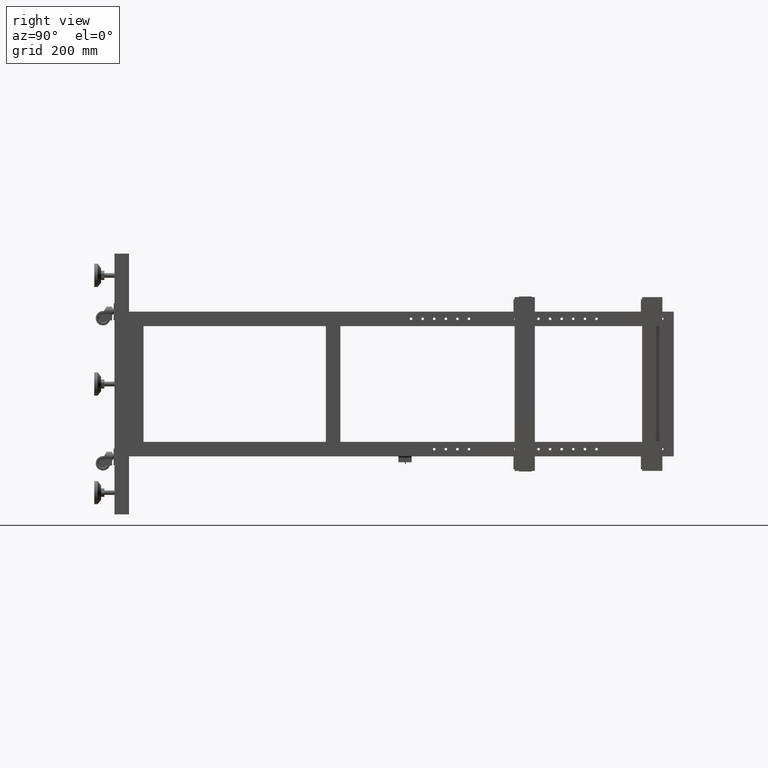
[diagram: clean part render]
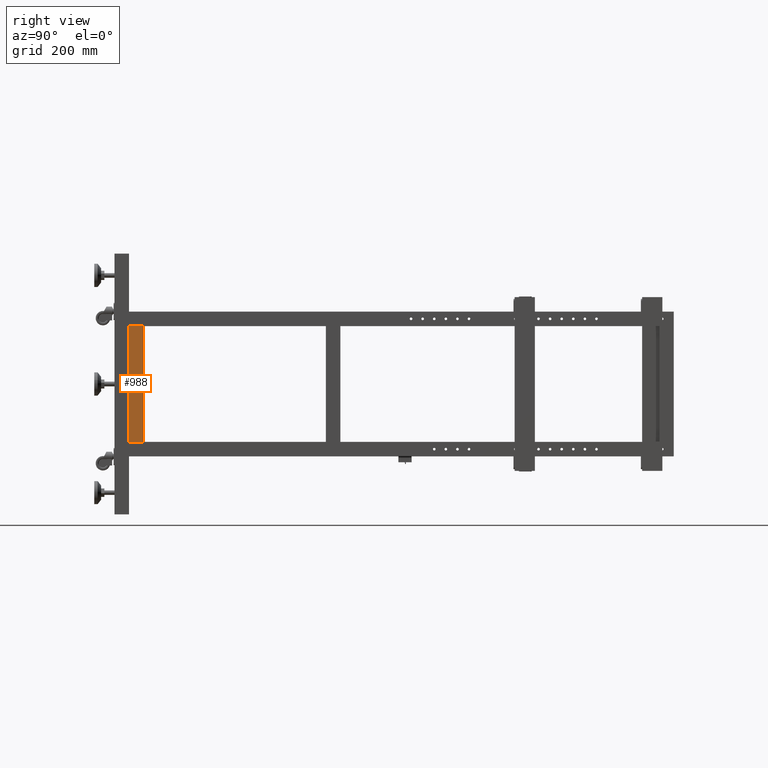
[diagram: same view with one face highlighted and labeled with its STEP entity id]
A machine part, right view. The second image highlights one B-rep face of the part: STEP entity #988.
In plain terms, the highlighted planar face has unit normal (-1, 0, 0).
Its self-contained STEP definition (entity closure, byte-faithful):
#210 = DIRECTION ( 'NONE',  ( -1.219458437746274471E-17, -1.000000000000000000, 0.000000000000000000 ) ) ;
#988 = ADVANCED_FACE ( 'NONE', ( #58019 ), #41168, .F. ) ;
#1818 = EDGE_CURVE ( 'NONE', #29244, #45562, #11613, .T. ) ;
#2681 = VERTEX_POINT ( 'NONE', #38645 ) ;
#4744 = CARTESIAN_POINT ( 'NONE',  ( -98.17248743718477044, -794.5589195979874830, -200.0000000000000000 ) ) ;
#5003 = DIRECTION ( 'NONE',  ( -1.000000000000000000, 1.219458437746274471E-17, 0.000000000000000000 ) ) ;
#7145 = DIRECTION ( 'NONE',  ( -1.219458437746274471E-17, -1.000000000000000000, 0.000000000000000000 ) ) ;
#9740 = LINE ( 'NONE', #51404, #52455 ) ;
#10069 = CARTESIAN_POINT ( 'NONE',  ( -98.17248743718477044, -844.5589195979875967, -200.0000000000000000 ) ) ;
#11613 = LINE ( 'NONE', #43980, #45850 ) ;
#11899 = ORIENTED_EDGE ( 'NONE', *, *, #27309, .T. ) ;
#16939 = VECTOR ( 'NONE', #7145, 1000.000000000000000 ) ;
#17814 = LINE ( 'NONE', #59828, #16939 ) ;
#22468 = EDGE_CURVE ( 'NONE', #29244, #2681, #41871, .T. ) ;
#23883 = ORIENTED_EDGE ( 'NONE', *, *, #22468, .T. ) ;
#24134 = AXIS2_PLACEMENT_3D ( 'NONE', #46005, #5003, #56998 ) ;
#27309 = EDGE_CURVE ( 'NONE', #2681, #49374, #9740, .T. ) ;
#29244 = VERTEX_POINT ( 'NONE', #40584 ) ;
#31552 = ORIENTED_EDGE ( 'NONE', *, *, #1818, .F. ) ;
#33703 = EDGE_CURVE ( 'NONE', #45562, #49374, #17814, .T. ) ;
#33823 = VECTOR ( 'NONE', #210, 1000.000000000000000 ) ;
#34604 = DIRECTION ( 'NONE',  ( -0.000000000000000000, 0.000000000000000000, -1.000000000000000000 ) ) ;
#37044 = CARTESIAN_POINT ( 'NONE',  ( -98.17248743718477044, -844.5589195979875967, 200.0000000000000000 ) ) ;
#38573 = ORIENTED_EDGE ( 'NONE', *, *, #33703, .F. ) ;
#38645 = CARTESIAN_POINT ( 'NONE',  ( -98.17248743718477044, -844.5589195979875967, 200.0000000000000000 ) ) ;
#40584 = CARTESIAN_POINT ( 'NONE',  ( -98.17248743718477044, -794.5589195979874830, 200.0000000000000000 ) ) ;
#41168 = PLANE ( 'NONE',  #24134 ) ;
#41871 = LINE ( 'NONE', #37044, #33823 ) ;
#43645 = DIRECTION ( 'NONE',  ( -0.000000000000000000, 0.000000000000000000, -1.000000000000000000 ) ) ;
#43980 = CARTESIAN_POINT ( 'NONE',  ( -98.17248743718477044, -794.5589195979874830, 200.0000000000000000 ) ) ;
#45562 = VERTEX_POINT ( 'NONE', #4744 ) ;
#45850 = VECTOR ( 'NONE', #43645, 1000.000000000000000 ) ;
#46005 = CARTESIAN_POINT ( 'NONE',  ( -98.17248743718477044, -844.5589195979875967, 200.0000000000000000 ) ) ;
#49374 = VERTEX_POINT ( 'NONE', #10069 ) ;
#51404 = CARTESIAN_POINT ( 'NONE',  ( -98.17248743718477044, -844.5589195979875967, 200.0000000000000000 ) ) ;
#52455 = VECTOR ( 'NONE', #34604, 1000.000000000000000 ) ;
#56998 = DIRECTION ( 'NONE',  ( 1.219458437746274471E-17, 1.000000000000000000, 0.000000000000000000 ) ) ;
#58019 = FACE_OUTER_BOUND ( 'NONE', #59816, .T. ) ;
#59816 = EDGE_LOOP ( 'NONE', ( #38573, #31552, #23883, #11899 ) ) ;
#59828 = CARTESIAN_POINT ( 'NONE',  ( -98.17248743718477044, -844.5589195979875967, -200.0000000000000000 ) ) ;